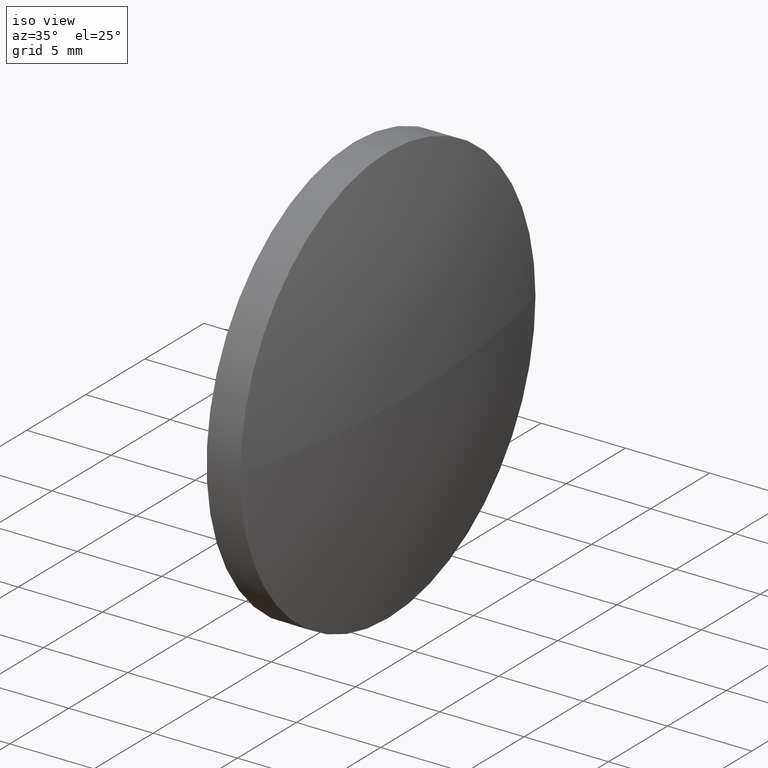
[diagram: clean part render]
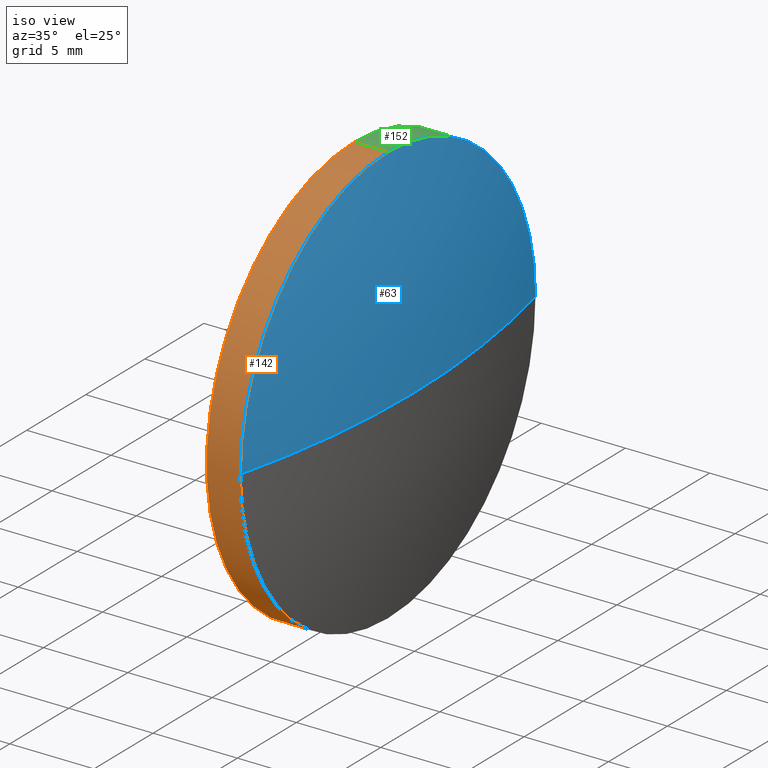
[diagram: same view with three faces highlighted in distinct colors, each labeled with its STEP entity id]
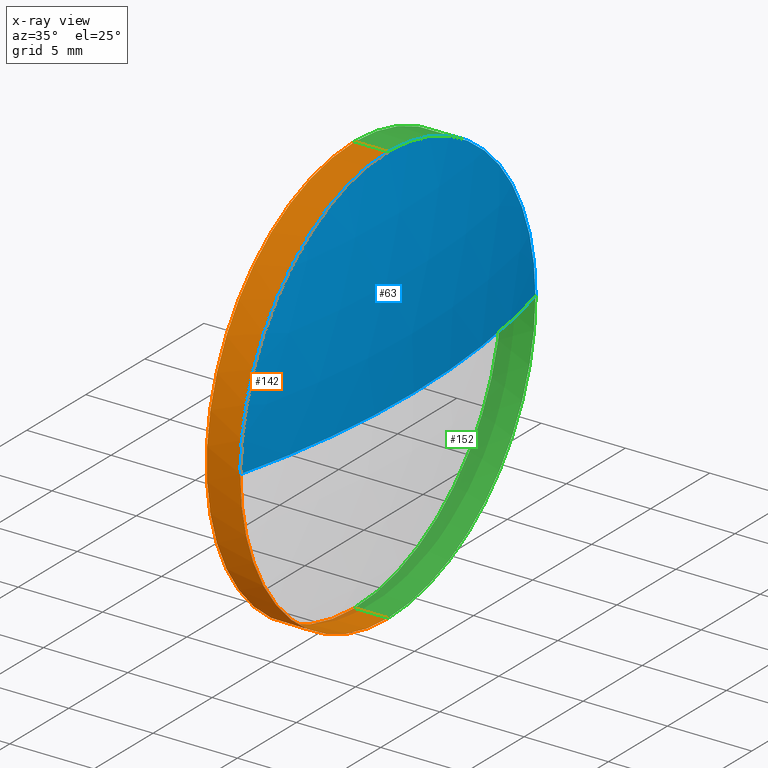
[diagram: x-ray of the same camera — body ghosted, the three highlighted faces saturated]
A machine part, iso view with three faces highlighted in distinct colors.
The next image is the same camera in x-ray (body ghosted, the three faces saturated) — at least one of them is partly hidden behind the body in this view.
Their STEP definitions:

[orange] entity #142 — the highlighted cylindrical surface (partial cylindrical patch) has radius 12.5 mm, axis along (-1, -0, -0).
#2 = EDGE_CURVE ( 'NONE', #172, #102, #81, .T. ) ;
#3 = CIRCLE ( 'NONE', #48, 12.50000000000000400 ) ;
#6 = DIRECTION ( 'NONE',  ( -1.000000000000000000, -0.0000000000000000000, -0.0000000000000000000 ) ) ;
#8 = CIRCLE ( 'NONE', #9, 12.50000000000000400 ) ;
#9 = AXIS2_PLACEMENT_3D ( 'NONE', #165, #100, #36 ) ;
#11 = VERTEX_POINT ( 'NONE', #134 ) ;
#12 = EDGE_CURVE ( 'NONE', #167, #11, #3, .T. ) ;
#22 = FACE_OUTER_BOUND ( 'NONE', #136, .T. ) ;
#27 = ORIENTED_EDGE ( 'NONE', *, *, #113, .T. ) ;
#29 = LINE ( 'NONE', #35, #179 ) ;
#30 = ORIENTED_EDGE ( 'NONE', *, *, #2, .T. ) ;
#31 = DIRECTION ( 'NONE',  ( 0.0000000000000000000, 0.0000000000000000000, 1.000000000000000000 ) ) ;
#35 = CARTESIAN_POINT ( 'NONE',  ( 405.6887197793739100, 36.41570885204544100, -12.50000000000000400 ) ) ;
#36 = DIRECTION ( 'NONE',  ( 0.0000000000000000000, 0.0000000000000000000, 1.000000000000000000 ) ) ;
#48 = AXIS2_PLACEMENT_3D ( 'NONE', #145, #97, #31 ) ;
#52 = CARTESIAN_POINT ( 'NONE',  ( 410.4307510212638000, 36.41570885204544100, 12.50000000000000400 ) ) ;
#53 = EDGE_CURVE ( 'NONE', #143, #102, #96, .T. ) ;
#54 = DIRECTION ( 'NONE',  ( -1.000000000000000000, -0.0000000000000000000, -0.0000000000000000000 ) ) ;
#65 = AXIS2_PLACEMENT_3D ( 'NONE', #71, #162, #83 ) ;
#66 = ORIENTED_EDGE ( 'NONE', *, *, #101, .F. ) ;
#69 = CYLINDRICAL_SURFACE ( 'NONE', #133, 12.50000000000000400 ) ;
#71 = CARTESIAN_POINT ( 'NONE',  ( 410.4307510212638000, 36.41570885204544100, 0.0000000000000000000 ) ) ;
#81 = LINE ( 'NONE', #82, #184 ) ;
#82 = CARTESIAN_POINT ( 'NONE',  ( 405.6887197793739100, 36.41570885204544100, 12.50000000000000400 ) ) ;
#83 = DIRECTION ( 'NONE',  ( 0.0000000000000000000, 0.0000000000000000000, 1.000000000000000000 ) ) ;
#95 = ORIENTED_EDGE ( 'NONE', *, *, #53, .F. ) ;
#96 = CIRCLE ( 'NONE', #65, 12.50000000000000400 ) ;
#97 = DIRECTION ( 'NONE',  ( -1.000000000000000000, -0.0000000000000000000, -0.0000000000000000000 ) ) ;
#100 = DIRECTION ( 'NONE',  ( -1.000000000000000000, -0.0000000000000000000, -0.0000000000000000000 ) ) ;
#101 = EDGE_CURVE ( 'NONE', #167, #143, #29, .T. ) ;
#102 = VERTEX_POINT ( 'NONE', #52 ) ;
#109 = DIRECTION ( 'NONE',  ( -1.000000000000000000, -0.0000000000000000000, -0.0000000000000000000 ) ) ;
#113 = EDGE_CURVE ( 'NONE', #11, #172, #8, .T. ) ;
#133 = AXIS2_PLACEMENT_3D ( 'NONE', #161, #6, #176 ) ;
#134 = CARTESIAN_POINT ( 'NONE',  ( 412.4307510212638000, 23.91570885204540200, -1.530808498934187800E-015 ) ) ;
#136 = EDGE_LOOP ( 'NONE', ( #66, #155, #27, #30, #95 ) ) ;
#142 = ADVANCED_FACE ( 'NONE', ( #22 ), #69, .T. ) ;
#143 = VERTEX_POINT ( 'NONE', #163 ) ;
#145 = CARTESIAN_POINT ( 'NONE',  ( 412.4307510212638000, 36.41570885204544100, 0.0000000000000000000 ) ) ;
#155 = ORIENTED_EDGE ( 'NONE', *, *, #12, .T. ) ;
#157 = CARTESIAN_POINT ( 'NONE',  ( 412.4307510212638000, 36.41570885204544100, 12.50000000000000400 ) ) ;
#161 = CARTESIAN_POINT ( 'NONE',  ( 405.6887197793739100, 36.41570885204544100, 0.0000000000000000000 ) ) ;
#162 = DIRECTION ( 'NONE',  ( -1.000000000000000000, -0.0000000000000000000, -0.0000000000000000000 ) ) ;
#163 = CARTESIAN_POINT ( 'NONE',  ( 410.4307510212638000, 36.41570885204544100, -12.50000000000000400 ) ) ;
#165 = CARTESIAN_POINT ( 'NONE',  ( 412.4307510212638000, 36.41570885204544100, 0.0000000000000000000 ) ) ;
#167 = VERTEX_POINT ( 'NONE', #175 ) ;
#172 = VERTEX_POINT ( 'NONE', #157 ) ;
#175 = CARTESIAN_POINT ( 'NONE',  ( 412.4307510212638000, 36.41570885204544100, -12.50000000000000400 ) ) ;
#176 = DIRECTION ( 'NONE',  ( 0.0000000000000000000, 0.0000000000000000000, 1.000000000000000000 ) ) ;
#179 = VECTOR ( 'NONE', #54, 1000.000000000000000 ) ;
#184 = VECTOR ( 'NONE', #109, 1000.000000000000000 ) ;

[blue] entity #63 — the highlighted spherical surface has radius 51.5005 mm.
#7 = CARTESIAN_POINT ( 'NONE',  ( 413.9707510212638200, 36.41570885204537000, 0.0000000000000000000 ) ) ;
#8 = CIRCLE ( 'NONE', #9, 12.50000000000000400 ) ;
#9 = AXIS2_PLACEMENT_3D ( 'NONE', #165, #100, #36 ) ;
#11 = VERTEX_POINT ( 'NONE', #134 ) ;
#26 = DIRECTION ( 'NONE',  ( 0.0000000000000000000, 1.000000000000000000, 1.224646799147353200E-016 ) ) ;
#32 = DIRECTION ( 'NONE',  ( -1.000000000000000000, -0.0000000000000000000, -0.0000000000000000000 ) ) ;
#36 = DIRECTION ( 'NONE',  ( 0.0000000000000000000, 0.0000000000000000000, 1.000000000000000000 ) ) ;
#38 = EDGE_CURVE ( 'NONE', #172, #61, #137, .T. ) ;
#47 = ORIENTED_EDGE ( 'NONE', *, *, #113, .F. ) ;
#50 = CARTESIAN_POINT ( 'NONE',  ( 412.4307510212638000, 48.91570885204540500, 0.0000000000000000000 ) ) ;
#51 = AXIS2_PLACEMENT_3D ( 'NONE', #99, #135, #112 ) ;
#61 = VERTEX_POINT ( 'NONE', #50 ) ;
#63 = ADVANCED_FACE ( 'NONE', ( #68 ), #148, .T. ) ;
#68 = FACE_OUTER_BOUND ( 'NONE', #88, .T. ) ;
#75 = AXIS2_PLACEMENT_3D ( 'NONE', #182, #171, #26 ) ;
#79 = VERTEX_POINT ( 'NONE', #7 ) ;
#88 = EDGE_LOOP ( 'NONE', ( #140, #153, #180, #47 ) ) ;
#94 = EDGE_CURVE ( 'NONE', #79, #61, #119, .T. ) ;
#98 = DIRECTION ( 'NONE',  ( 0.0000000000000000000, 0.0000000000000000000, 1.000000000000000000 ) ) ;
#99 = CARTESIAN_POINT ( 'NONE',  ( 362.4702315407442400, 36.41570885204537000, 0.0000000000000000000 ) ) ;
#100 = DIRECTION ( 'NONE',  ( -1.000000000000000000, -0.0000000000000000000, -0.0000000000000000000 ) ) ;
#106 = CIRCLE ( 'NONE', #75, 51.50051948051955000 ) ;
#108 = AXIS2_PLACEMENT_3D ( 'NONE', #124, #32, #98 ) ;
#110 = DIRECTION ( 'NONE',  ( 0.0000000000000000000, 1.000000000000000000, 0.0000000000000000000 ) ) ;
#111 = CARTESIAN_POINT ( 'NONE',  ( 362.4702315407442400, 36.41570885204537000, 0.0000000000000000000 ) ) ;
#112 = DIRECTION ( 'NONE',  ( 1.000000000000000000, 0.0000000000000000000, 0.0000000000000000000 ) ) ;
#113 = EDGE_CURVE ( 'NONE', #11, #172, #8, .T. ) ;
#119 = CIRCLE ( 'NONE', #51, 51.50051948051953600 ) ;
#124 = CARTESIAN_POINT ( 'NONE',  ( 412.4307510212638000, 36.41570885204544100, 0.0000000000000000000 ) ) ;
#134 = CARTESIAN_POINT ( 'NONE',  ( 412.4307510212638000, 23.91570885204540200, -1.530808498934187800E-015 ) ) ;
#135 = DIRECTION ( 'NONE',  ( -0.0000000000000000000, 0.0000000000000000000, 1.000000000000000000 ) ) ;
#137 = CIRCLE ( 'NONE', #108, 12.50000000000000400 ) ;
#139 = AXIS2_PLACEMENT_3D ( 'NONE', #111, #173, #110 ) ;
#140 = ORIENTED_EDGE ( 'NONE', *, *, #186, .F. ) ;
#148 = SPHERICAL_SURFACE ( 'NONE', #139, 51.50051948051955000 ) ;
#153 = ORIENTED_EDGE ( 'NONE', *, *, #94, .T. ) ;
#157 = CARTESIAN_POINT ( 'NONE',  ( 412.4307510212638000, 36.41570885204544100, 12.50000000000000400 ) ) ;
#165 = CARTESIAN_POINT ( 'NONE',  ( 412.4307510212638000, 36.41570885204544100, 0.0000000000000000000 ) ) ;
#171 = DIRECTION ( 'NONE',  ( 0.0000000000000000000, 1.224646799147353200E-016, -1.000000000000000000 ) ) ;
#172 = VERTEX_POINT ( 'NONE', #157 ) ;
#173 = DIRECTION ( 'NONE',  ( -0.0000000000000000000, 0.0000000000000000000, -1.000000000000000000 ) ) ;
#180 = ORIENTED_EDGE ( 'NONE', *, *, #38, .F. ) ;
#182 = CARTESIAN_POINT ( 'NONE',  ( 362.4702315407442400, 36.41570885204537000, 0.0000000000000000000 ) ) ;
#186 = EDGE_CURVE ( 'NONE', #79, #11, #106, .T. ) ;

[green] entity #152 — the highlighted cylindrical surface (partial cylindrical patch) has radius 12.5 mm, axis along (-1, -0, -0).
#2 = EDGE_CURVE ( 'NONE', #172, #102, #81, .T. ) ;
#20 = CIRCLE ( 'NONE', #64, 12.50000000000000400 ) ;
#29 = LINE ( 'NONE', #35, #179 ) ;
#32 = DIRECTION ( 'NONE',  ( -1.000000000000000000, -0.0000000000000000000, -0.0000000000000000000 ) ) ;
#35 = CARTESIAN_POINT ( 'NONE',  ( 405.6887197793739100, 36.41570885204544100, -12.50000000000000400 ) ) ;
#38 = EDGE_CURVE ( 'NONE', #172, #61, #137, .T. ) ;
#40 = ORIENTED_EDGE ( 'NONE', *, *, #174, .T. ) ;
#46 = DIRECTION ( 'NONE',  ( -1.000000000000000000, -0.0000000000000000000, -0.0000000000000000000 ) ) ;
#49 = CIRCLE ( 'NONE', #85, 12.50000000000000400 ) ;
#50 = CARTESIAN_POINT ( 'NONE',  ( 412.4307510212638000, 48.91570885204540500, 0.0000000000000000000 ) ) ;
#52 = CARTESIAN_POINT ( 'NONE',  ( 410.4307510212638000, 36.41570885204544100, 12.50000000000000400 ) ) ;
#54 = DIRECTION ( 'NONE',  ( -1.000000000000000000, -0.0000000000000000000, -0.0000000000000000000 ) ) ;
#58 = FACE_OUTER_BOUND ( 'NONE', #86, .T. ) ;
#61 = VERTEX_POINT ( 'NONE', #50 ) ;
#62 = DIRECTION ( 'NONE',  ( 0.0000000000000000000, 0.0000000000000000000, 1.000000000000000000 ) ) ;
#64 = AXIS2_PLACEMENT_3D ( 'NONE', #131, #46, #164 ) ;
#73 = ORIENTED_EDGE ( 'NONE', *, *, #2, .F. ) ;
#77 = DIRECTION ( 'NONE',  ( -1.000000000000000000, -0.0000000000000000000, -0.0000000000000000000 ) ) ;
#81 = LINE ( 'NONE', #82, #184 ) ;
#82 = CARTESIAN_POINT ( 'NONE',  ( 405.6887197793739100, 36.41570885204544100, 12.50000000000000400 ) ) ;
#85 = AXIS2_PLACEMENT_3D ( 'NONE', #117, #77, #62 ) ;
#86 = EDGE_LOOP ( 'NONE', ( #40, #116, #129, #73, #107 ) ) ;
#87 = DIRECTION ( 'NONE',  ( 0.0000000000000000000, 0.0000000000000000000, 1.000000000000000000 ) ) ;
#98 = DIRECTION ( 'NONE',  ( 0.0000000000000000000, 0.0000000000000000000, 1.000000000000000000 ) ) ;
#101 = EDGE_CURVE ( 'NONE', #167, #143, #29, .T. ) ;
#102 = VERTEX_POINT ( 'NONE', #52 ) ;
#107 = ORIENTED_EDGE ( 'NONE', *, *, #38, .T. ) ;
#108 = AXIS2_PLACEMENT_3D ( 'NONE', #124, #32, #98 ) ;
#109 = DIRECTION ( 'NONE',  ( -1.000000000000000000, -0.0000000000000000000, -0.0000000000000000000 ) ) ;
#115 = DIRECTION ( 'NONE',  ( -1.000000000000000000, -0.0000000000000000000, -0.0000000000000000000 ) ) ;
#116 = ORIENTED_EDGE ( 'NONE', *, *, #101, .T. ) ;
#117 = CARTESIAN_POINT ( 'NONE',  ( 412.4307510212638000, 36.41570885204544100, 0.0000000000000000000 ) ) ;
#120 = EDGE_CURVE ( 'NONE', #102, #143, #20, .T. ) ;
#124 = CARTESIAN_POINT ( 'NONE',  ( 412.4307510212638000, 36.41570885204544100, 0.0000000000000000000 ) ) ;
#129 = ORIENTED_EDGE ( 'NONE', *, *, #120, .F. ) ;
#131 = CARTESIAN_POINT ( 'NONE',  ( 410.4307510212638000, 36.41570885204544100, 0.0000000000000000000 ) ) ;
#137 = CIRCLE ( 'NONE', #108, 12.50000000000000400 ) ;
#143 = VERTEX_POINT ( 'NONE', #163 ) ;
#150 = AXIS2_PLACEMENT_3D ( 'NONE', #177, #115, #87 ) ;
#152 = ADVANCED_FACE ( 'NONE', ( #58 ), #154, .T. ) ;
#154 = CYLINDRICAL_SURFACE ( 'NONE', #150, 12.50000000000000400 ) ;
#157 = CARTESIAN_POINT ( 'NONE',  ( 412.4307510212638000, 36.41570885204544100, 12.50000000000000400 ) ) ;
#163 = CARTESIAN_POINT ( 'NONE',  ( 410.4307510212638000, 36.41570885204544100, -12.50000000000000400 ) ) ;
#164 = DIRECTION ( 'NONE',  ( 0.0000000000000000000, 0.0000000000000000000, 1.000000000000000000 ) ) ;
#167 = VERTEX_POINT ( 'NONE', #175 ) ;
#172 = VERTEX_POINT ( 'NONE', #157 ) ;
#174 = EDGE_CURVE ( 'NONE', #61, #167, #49, .T. ) ;
#175 = CARTESIAN_POINT ( 'NONE',  ( 412.4307510212638000, 36.41570885204544100, -12.50000000000000400 ) ) ;
#177 = CARTESIAN_POINT ( 'NONE',  ( 405.6887197793739100, 36.41570885204544100, 0.0000000000000000000 ) ) ;
#179 = VECTOR ( 'NONE', #54, 1000.000000000000000 ) ;
#184 = VECTOR ( 'NONE', #109, 1000.000000000000000 ) ;